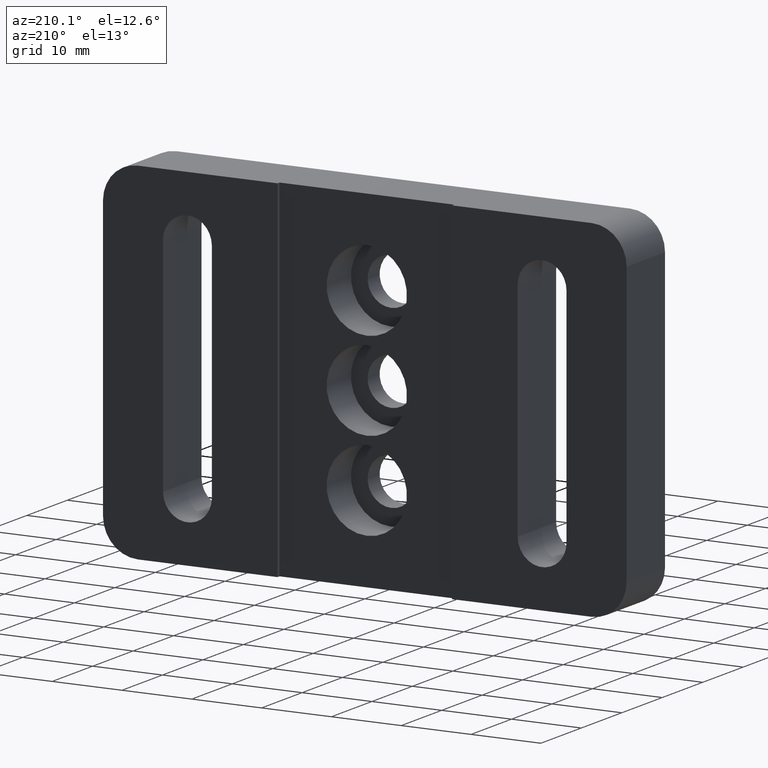
[diagram: clean part render]
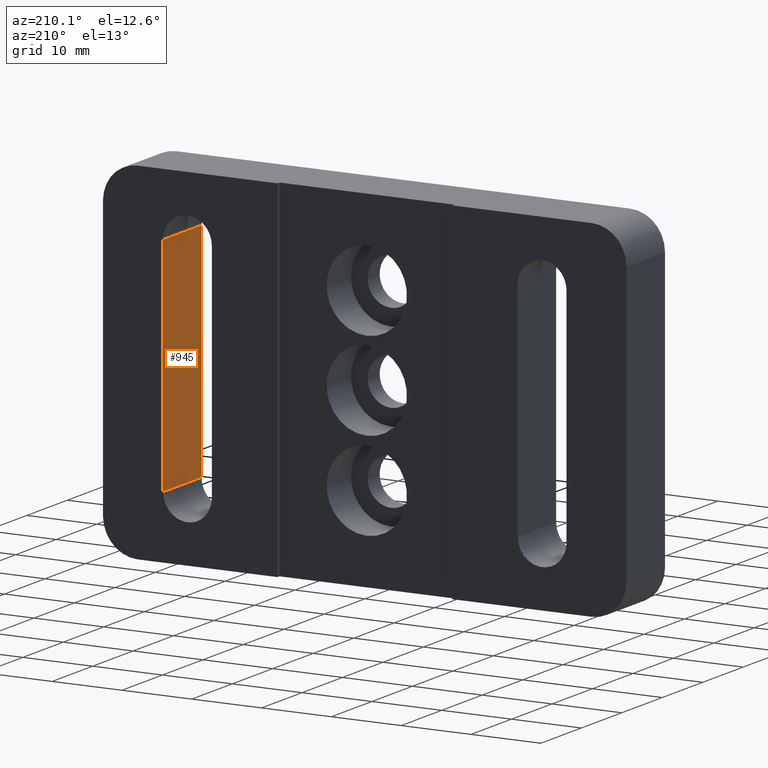
[diagram: same view with one face highlighted and labeled with its STEP entity id]
A machine part, auxiliary view. The second image highlights one B-rep face of the part: STEP entity #945.
In plain terms, the highlighted planar face has unit normal (1, 0, -0).
Its self-contained STEP definition (entity closure, byte-faithful):
#36 = ORIENTED_EDGE ( 'NONE', *, *, #524, .T. ) ;
#110 = DIRECTION ( 'NONE',  ( -0.0000000000000000000, 1.000000000000000000, -0.0000000000000000000 ) ) ;
#229 = VERTEX_POINT ( 'NONE', #584 ) ;
#246 = LINE ( 'NONE', #983, #1275 ) ;
#262 = EDGE_CURVE ( 'NONE', #1126, #743, #955, .T. ) ;
#317 = PLANE ( 'NONE',  #1273 ) ;
#389 = FACE_OUTER_BOUND ( 'NONE', #894, .T. ) ;
#401 = DIRECTION ( 'NONE',  ( 1.000000000000000000, 0.0000000000000000000, -0.0000000000000000000 ) ) ;
#418 = CARTESIAN_POINT ( 'NONE',  ( 28.89999999999999900, -10.00000000000000000, -16.00000000000000000 ) ) ;
#420 = DIRECTION ( 'NONE',  ( -0.0000000000000000000, -0.0000000000000000000, -1.000000000000000000 ) ) ;
#442 = CARTESIAN_POINT ( 'NONE',  ( 28.89999999999999900, -10.00000000000000000, -16.00000000000000000 ) ) ;
#464 = VERTEX_POINT ( 'NONE', #488 ) ;
#488 = CARTESIAN_POINT ( 'NONE',  ( 28.89999999999999900, 0.0000000000000000000, 15.99999999999998600 ) ) ;
#520 = LINE ( 'NONE', #1009, #843 ) ;
#524 = EDGE_CURVE ( 'NONE', #464, #743, #520, .T. ) ;
#584 = CARTESIAN_POINT ( 'NONE',  ( 28.89999999999999900, -9.500000000000000000, 15.99999999999998600 ) ) ;
#598 = DIRECTION ( 'NONE',  ( -0.0000000000000000000, 1.000000000000000000, -0.0000000000000000000 ) ) ;
#678 = ORIENTED_EDGE ( 'NONE', *, *, #262, .F. ) ;
#700 = LINE ( 'NONE', #992, #924 ) ;
#705 = CARTESIAN_POINT ( 'NONE',  ( 28.89999999999999900, -9.500000000000000000, -16.00000000000000000 ) ) ;
#742 = ORIENTED_EDGE ( 'NONE', *, *, #1237, .T. ) ;
#743 = VERTEX_POINT ( 'NONE', #1148 ) ;
#843 = VECTOR ( 'NONE', #420, 1000.000000000000000 ) ;
#865 = EDGE_CURVE ( 'NONE', #229, #1126, #700, .T. ) ;
#894 = EDGE_LOOP ( 'NONE', ( #742, #36, #678, #1196 ) ) ;
#924 = VECTOR ( 'NONE', #1290, 1000.000000000000000 ) ;
#945 = ADVANCED_FACE ( 'NONE', ( #389 ), #317, .F. ) ;
#955 = LINE ( 'NONE', #442, #974 ) ;
#974 = VECTOR ( 'NONE', #110, 1000.000000000000000 ) ;
#983 = CARTESIAN_POINT ( 'NONE',  ( 28.89999999999999900, -10.00000000000000000, 15.99999999999998600 ) ) ;
#992 = CARTESIAN_POINT ( 'NONE',  ( 28.89999999999999500, -9.500000000000000000, 9.696484173239974200E-015 ) ) ;
#1009 = CARTESIAN_POINT ( 'NONE',  ( 28.89999999999999900, 0.0000000000000000000, -16.00000000000000000 ) ) ;
#1126 = VERTEX_POINT ( 'NONE', #705 ) ;
#1148 = CARTESIAN_POINT ( 'NONE',  ( 28.89999999999999900, 0.0000000000000000000, -16.00000000000000000 ) ) ;
#1196 = ORIENTED_EDGE ( 'NONE', *, *, #865, .F. ) ;
#1206 = DIRECTION ( 'NONE',  ( -0.0000000000000000000, 0.0000000000000000000, -1.000000000000000000 ) ) ;
#1237 = EDGE_CURVE ( 'NONE', #229, #464, #246, .T. ) ;
#1273 = AXIS2_PLACEMENT_3D ( 'NONE', #418, #401, #1206 ) ;
#1275 = VECTOR ( 'NONE', #598, 1000.000000000000000 ) ;
#1290 = DIRECTION ( 'NONE',  ( 0.0000000000000000000, 0.0000000000000000000, -1.000000000000000000 ) ) ;